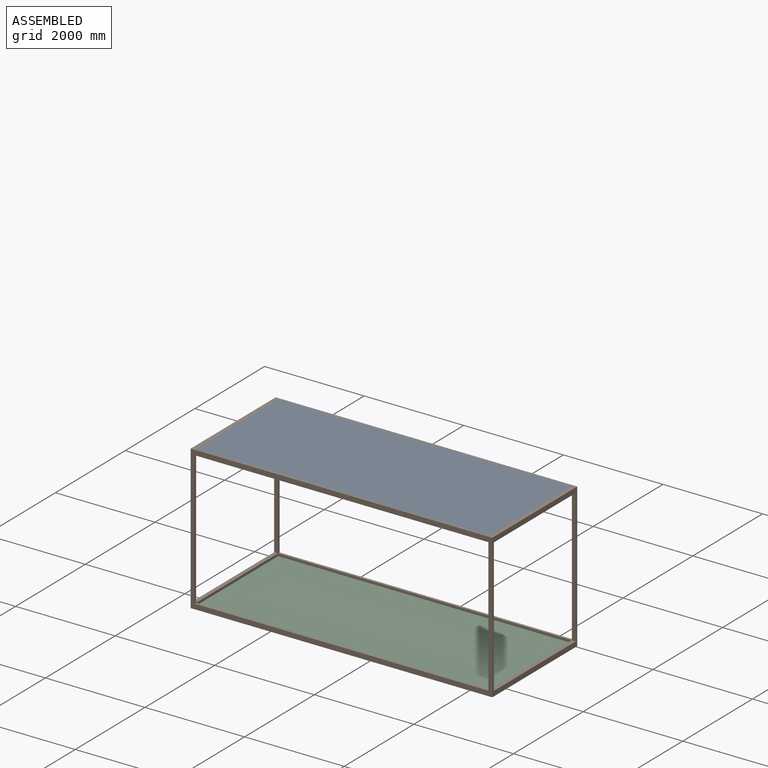
[diagram: assembled view]
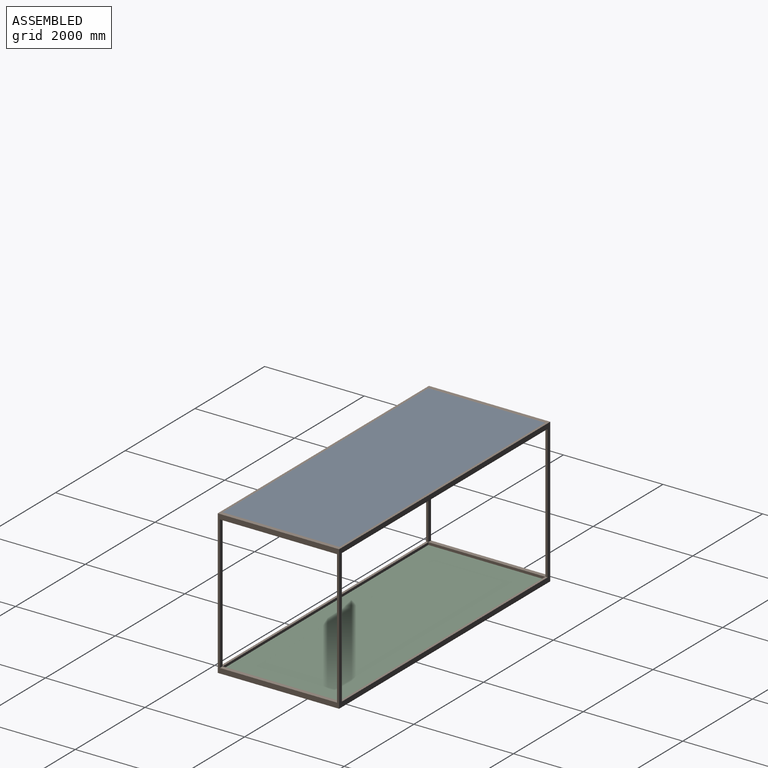
[diagram: assembled view, second angle]
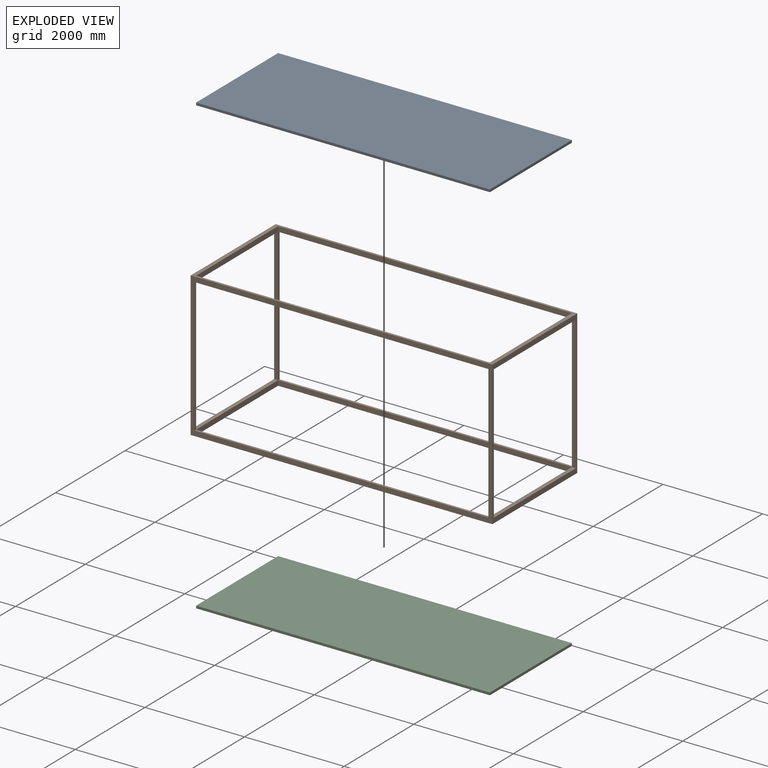
[diagram: exploded view]
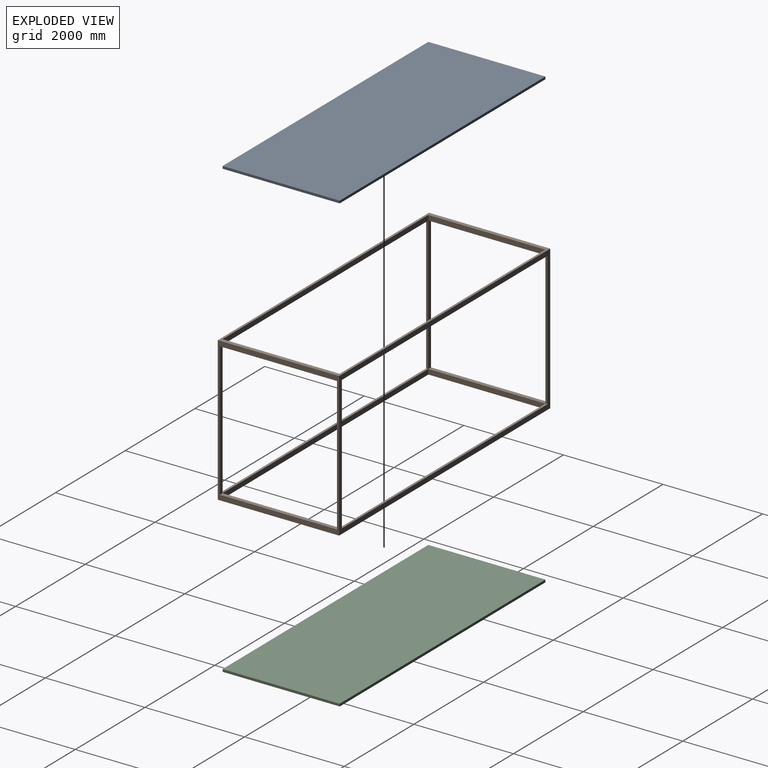
[diagram: exploded view, second angle]
ASSEMBLY  parts=3 mates=2
PART A: 6 faces, bbox 5900x2352x50 mm
  f0: plane 2352x50mm, normal (1,0,0), area 117600mm2, adj f1,f3,f4,f5
  f1: plane 5900x50mm, normal (0,1,0), area 295000mm2, adj f0,f2,f4,f5
  f2: plane 2352x50mm, normal (-1,0,0), area 117600mm2, adj f1,f3,f4,f5
  f3: plane 5900x50mm, normal (0,-1,0), area 295000mm2, adj f0,f2,f4,f5
  f4: plane 5900x2352mm, normal (0,0,1), area 13876800mm2, adj f0,f1,f2,f3
  f5: plane 5900x2352mm, normal (0,0,-1), area 13876800mm2, adj f0,f1,f2,f3
PART B: 24 faces, bbox 6058x2438x2896 mm
  f0: plane 2695x43mm, normal (-1,0,0), area 115885mm2, adj f15,f18,f19,f22
  f1: plane 2695x43mm, normal (-1,0,0), area 115885mm2, adj f9,f18,f19,f23
  f2: plane 2350x100.5mm, normal (-1,0,0), area 236175mm2, adj f6,f7,f17,f19
  f3: plane 2695x43mm, normal (1,0,0), area 115885mm2, adj f15,f18,f19,f21
  f4: plane 2695x43mm, normal (1,0,0), area 115885mm2, adj f9,f18,f19,f20
  f5: plane 2350x100.5mm, normal (1,0,0), area 236175mm2, adj f6,f7,f17,f19
  f6: plane 5900x100.5mm, normal (0,-1,0), area 592950mm2, adj f2,f5,f17,f19
  f7: plane 5900x100.5mm, normal (0,1,0), area 592950mm2, adj f2,f5,f17,f19
  f8: plane 2896x2438mm, normal (1,0,0), area 721808mm2, adj f9,f15,f16,f17,f18,f19,f22,f23
  f9: plane 6058x2896mm, normal (0,1,0), area 1643468mm2, adj f1,f4,f8,f10,f16,f17,f18,f19
  f10: plane 2896x2438mm, normal (-1,0,0), area 721808mm2, adj f9,f15,f16,f17,f18,f19,f20,f21
  f11: plane 5900x100.5mm, normal (0,-1,0), area 592950mm2, adj f12,f14,f16,f18
  f12: plane 2350x100.5mm, normal (-1,0,0), area 236175mm2, adj f11,f13,f16,f18
  f13: plane 5900x100.5mm, normal (0,1,0), area 592950mm2, adj f12,f14,f16,f18
  f14: plane 2350x100.5mm, normal (1,0,0), area 236175mm2, adj f11,f13,f16,f18
  f15: plane 6058x2896mm, normal (0,-1,0), area 1643468mm2, adj f0,f3,f8,f10,f16,f17,f18,f19
  f16: plane 6058x2438mm, normal (0,0,1), area 904404mm2, adj f8,f9,f10,f11,f12,f13,f14,f15
  f17: plane 6058x2438mm, normal (0,0,-1), area 904404mm2, adj f2,f5,f6,f7,f8,f9,f10,f15
  f18: plane 6058x2438mm, normal (0,0,-1), area 890816mm2, adj f0,f1,f3,f4,f8,f9,f10,f11
  f19: plane 6058x2438mm, normal (0,0,1), area 890816mm2, adj f0,f1,f2,f3,f4,f5,f6,f7
  f20: plane 2695x79mm, normal (0,-1,0), area 212905mm2, adj f4,f10,f18,f19
  f21: plane 2695x79mm, normal (0,1,0), area 212905mm2, adj f3,f10,f18,f19
  f22: plane 2695x79mm, normal (0,1,0), area 212905mm2, adj f0,f8,f18,f19
  f23: plane 2695x79mm, normal (0,-1,0), area 212905mm2, adj f1,f8,f18,f19
PART C: same geometry as A
PLACE A t=(0,0,2846)mm
PLACE B at identity fixed
PLACE C rot(axis=(1,0,0),180deg) t=(0,0,50)mm
MATE fastened A.f4 <-> B.f16  axis (0,0,1) through (0,0,2896)mm
MATE fastened B.f17 <-> C.f4  axis (0,0,-1) through (0,0,0)mm
